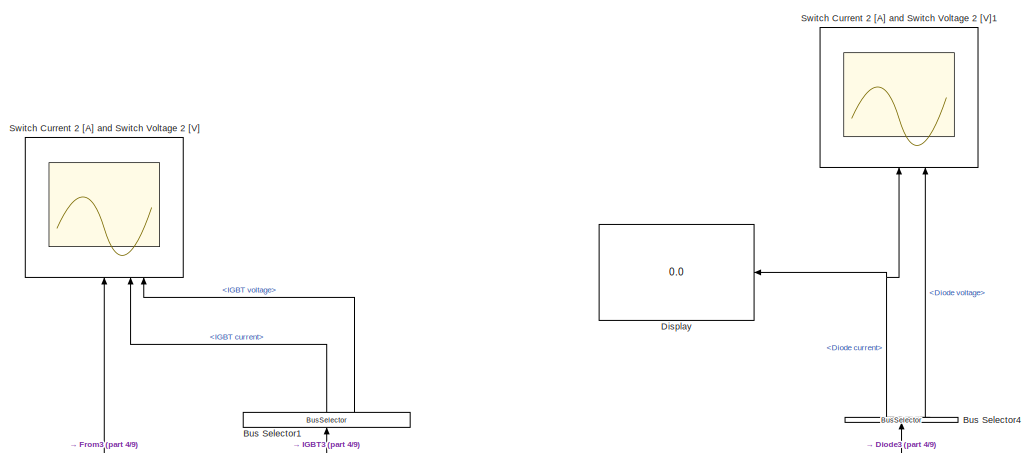
[diagram: root canvas - part 1/9, top right region]
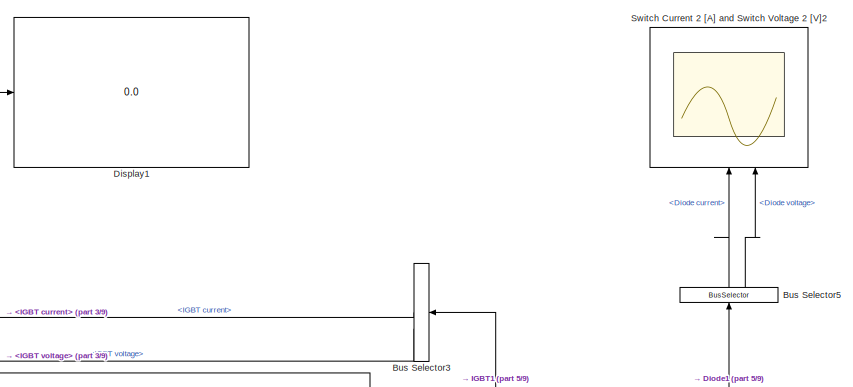
[diagram: root canvas - part 2/9, top center region]
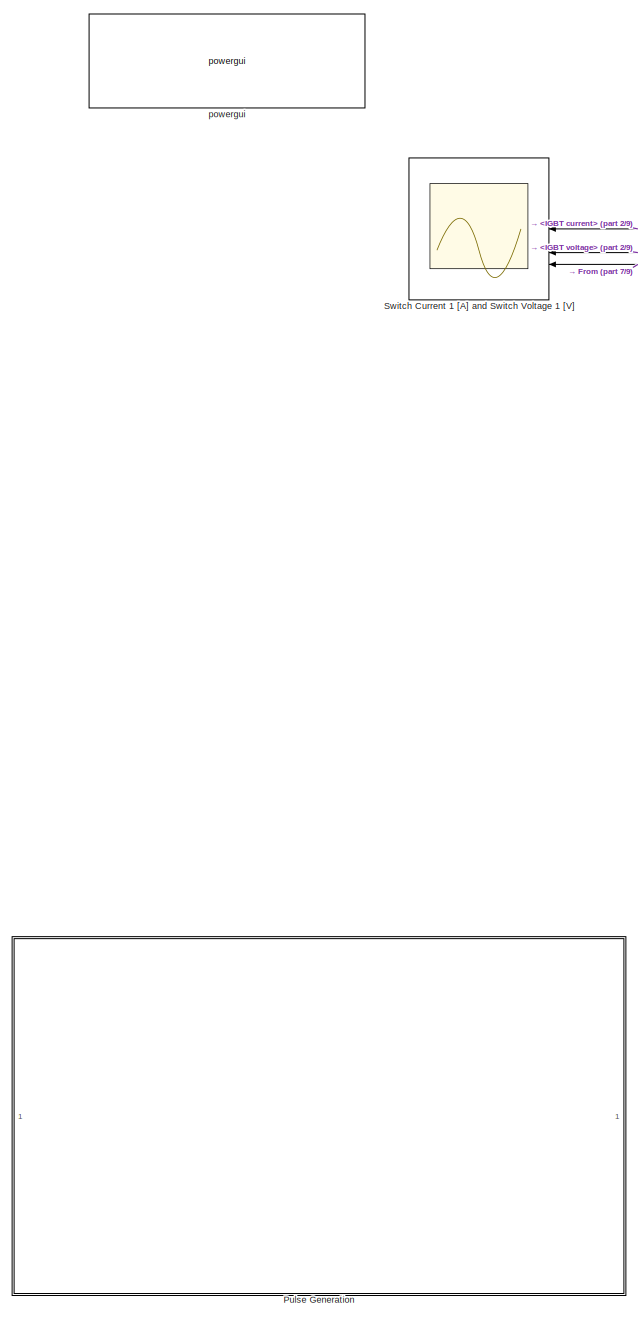
[diagram: root canvas - part 3/9, middle left region]
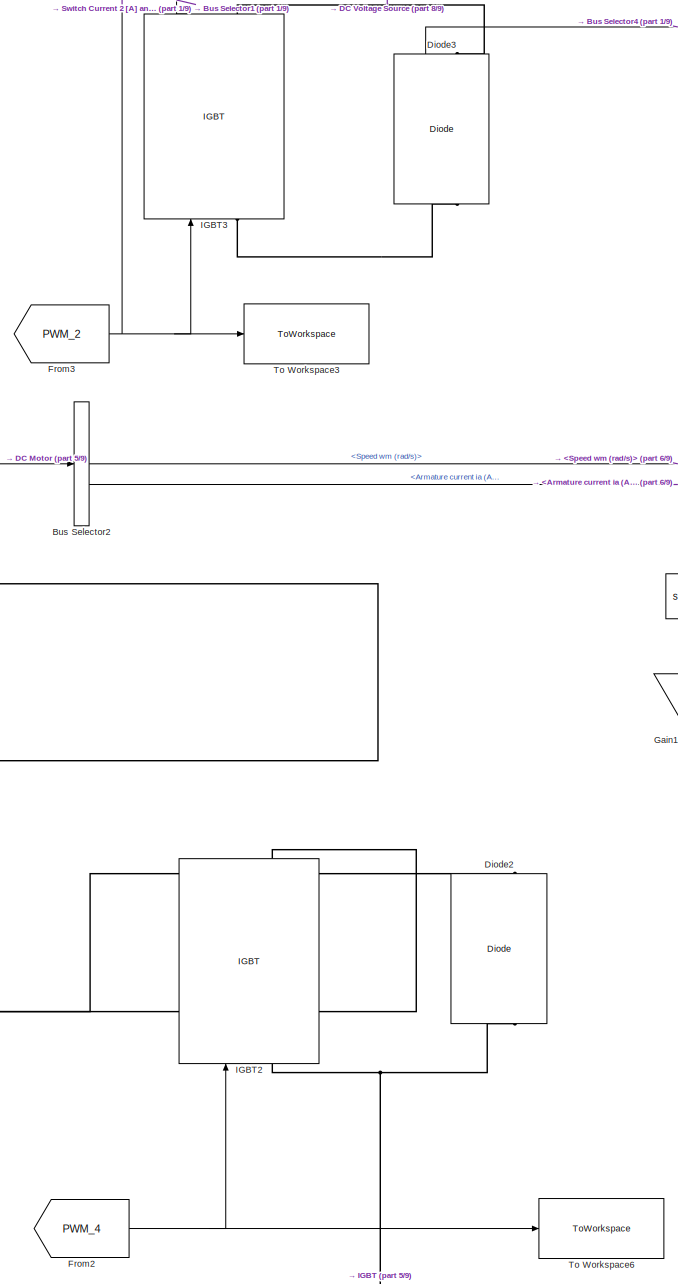
[diagram: root canvas - part 4/9, middle right region]
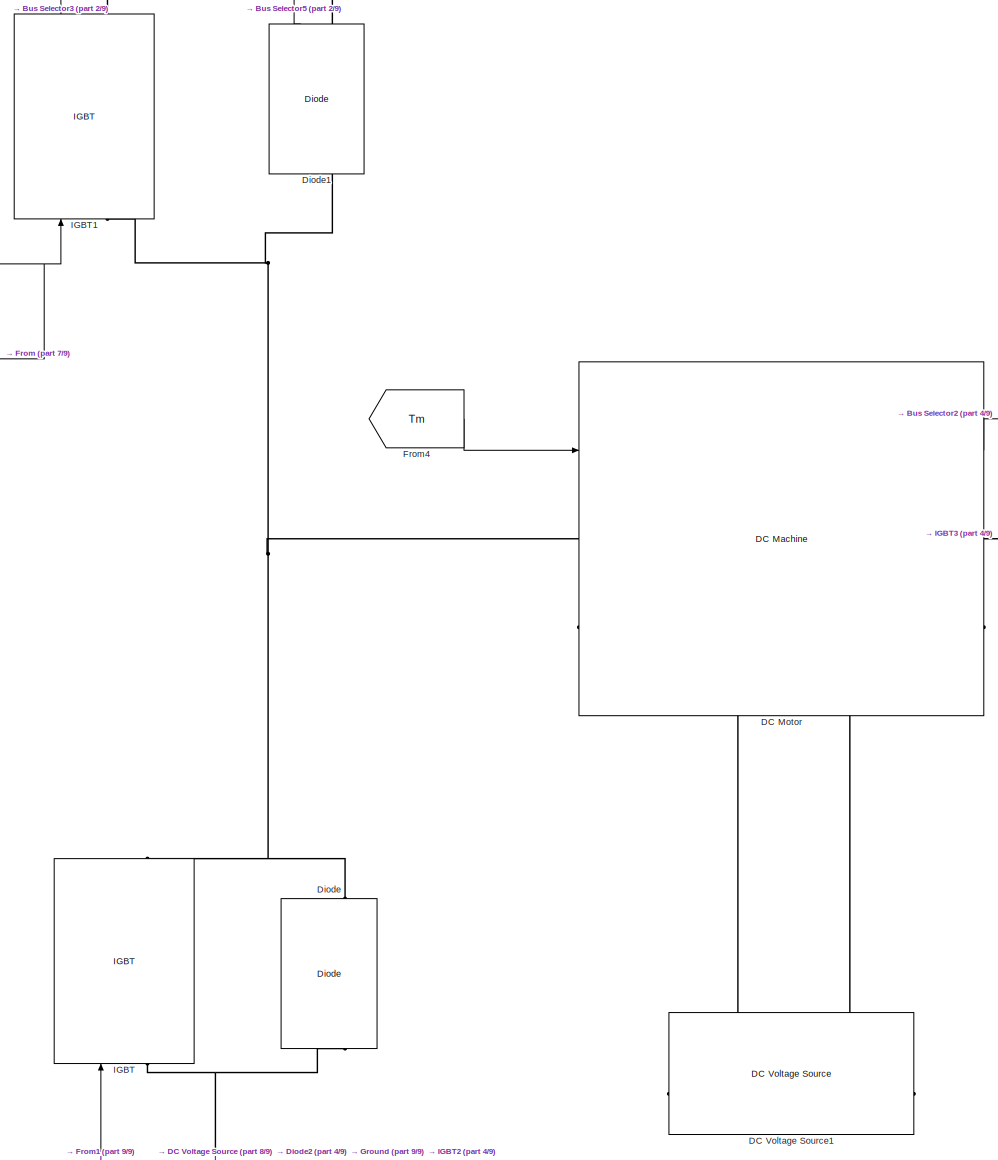
[diagram: root canvas - part 5/9, central region]
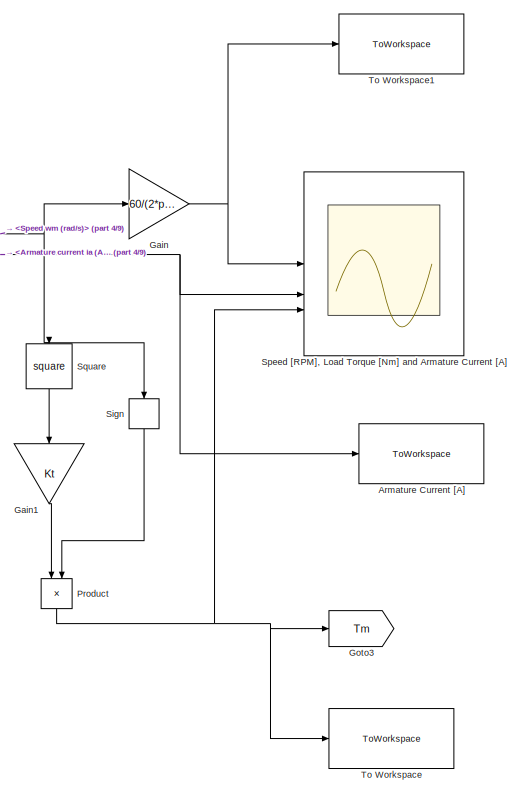
[diagram: root canvas - part 6/9, middle right region]
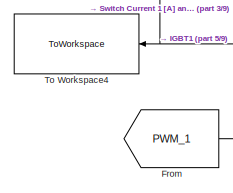
[diagram: root canvas - part 7/9, middle left region]
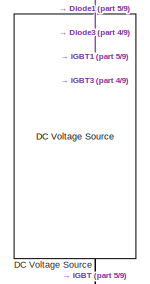
[diagram: root canvas - part 8/9, middle left region]
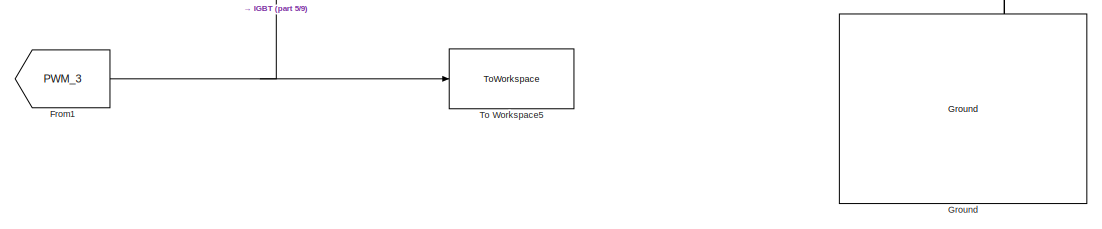
[diagram: root canvas - part 9/9, bottom center region]
MODEL slx_ec0bdc4184f7
KIND model
CONFIG AbsTol = auto
CONFIG EnableMultiTasking = off
CONFIG FixedStep = 6e-3
CONFIG MaxStep = auto
CONFIG MinStep = auto
CONFIG RelTol = 1e-3
CONFIG SampleTimeConstraint = Unconstrained
CONFIG SolverName = VariableStepAuto
CONFIG StartTime = 0.0
CONFIG StopTime = 1
BLOCK [ToWorkspace] Armature Current [A]
  FixptAsFi = on
  MaxDataPoints = inf
  SampleTime = -1
  VariableName = Ia
BLOCK [BusSelector] Bus Selector1
  NameLocation = right
  OutputSignals = IGBT current,IGBT voltage
BLOCK [BusSelector] Bus Selector2
  OutputSignals = Speed wm (rad/s),Armature current ia (A)
BLOCK [BusSelector] Bus Selector3
  NameLocation = top
  OutputSignals = IGBT current,IGBT voltage
BLOCK [BusSelector] Bus Selector4
  NameLocation = right
  OutputSignals = Diode current,Diode voltage
BLOCK [BusSelector] Bus Selector5
  NameLocation = right
  OutputSignals = Diode current,Diode voltage
BLOCK [Reference] DC Motor  REF=spsDCMachineLib/DC Machine
  LibrarySourceBlock = sps_lib/Electrical Machines/DC Machine
  SourceBlock = spsDCMachineLib/DC Machine
  SourceType = DC machine
BLOCK [Reference] DC Voltage Source  REF=spsDCVoltageSourceLib/DC Voltage Source
  LibrarySourceBlock = sps_lib/Sources/DC Voltage Source
  SourceBlock = spsDCVoltageSourceLib/DC Voltage Source
  SourceType = DC Voltage Source
BLOCK [Reference] DC Voltage Source1  REF=spsDCVoltageSourceLib/DC Voltage Source
  LibrarySourceBlock = sps_lib/Sources/DC Voltage Source
  NameLocation = right
  SourceBlock = spsDCVoltageSourceLib/DC Voltage Source
  SourceType = DC Voltage Source
BLOCK [Reference] Diode  REF=spsDiodeLib/Diode
  LibrarySourceBlock = sps_lib/Power Electronics/Diode
  NameLocation = right
  SourceBlock = spsDiodeLib/Diode
  SourceType = Diode
BLOCK [Reference] Diode1  REF=spsDiodeLib/Diode
  LibrarySourceBlock = sps_lib/Power Electronics/Diode
  NameLocation = right
  SourceBlock = spsDiodeLib/Diode
  SourceType = Diode
BLOCK [Reference] Diode2  REF=spsDiodeLib/Diode
  LibrarySourceBlock = sps_lib/Power Electronics/Diode
  NameLocation = right
  SourceBlock = spsDiodeLib/Diode
  SourceType = Diode
BLOCK [Reference] Diode3  REF=spsDiodeLib/Diode
  LibrarySourceBlock = sps_lib/Power Electronics/Diode
  NameLocation = right
  SourceBlock = spsDiodeLib/Diode
  SourceType = Diode
BLOCK [Display] Display
  Decimation = 1
  NameLocation = top
BLOCK [Display] Display1
  Decimation = 1
BLOCK [From] From
  GotoTag = PWM_1
  TagVisibility = global
BLOCK [From] From1
  GotoTag = PWM_3
  TagVisibility = global
BLOCK [From] From2
  GotoTag = PWM_4
  TagVisibility = global
BLOCK [From] From3
  GotoTag = PWM_2
  TagVisibility = global
BLOCK [From] From4
  GotoTag = Tm
BLOCK [Gain] Gain
  Gain = 60/(2*pi)
BLOCK [Gain] Gain1
  Gain = Kt
  NameLocation = left
BLOCK [Goto] Goto3
  GotoTag = Tm
BLOCK [Reference] Ground  REF=spsGroundLib/Ground
  LibrarySourceBlock = sps_lib/Utilities/Ground
  NameLocation = right
  SourceBlock = spsGroundLib/Ground
  SourceType = Ground
BLOCK [Reference] IGBT  REF=spsIGBTLib/IGBT
  LibrarySourceBlock = sps_lib/Power Electronics/IGBT
  NameLocation = right
  SourceBlock = spsIGBTLib/IGBT
  SourceType = IGBT
BLOCK [Reference] IGBT1  REF=spsIGBTLib/IGBT
  LibrarySourceBlock = sps_lib/Power Electronics/IGBT
  NameLocation = right
  SourceBlock = spsIGBTLib/IGBT
  SourceType = IGBT
BLOCK [Reference] IGBT2  REF=spsIGBTLib/IGBT
  LibrarySourceBlock = sps_lib/Power Electronics/IGBT
  NameLocation = right
  SourceBlock = spsIGBTLib/IGBT
  SourceType = IGBT
BLOCK [Reference] IGBT3  REF=spsIGBTLib/IGBT
  LibrarySourceBlock = sps_lib/Power Electronics/IGBT
  NameLocation = right
  SourceBlock = spsIGBTLib/IGBT
  SourceType = IGBT
BLOCK [Product] Product
  NameLocation = left
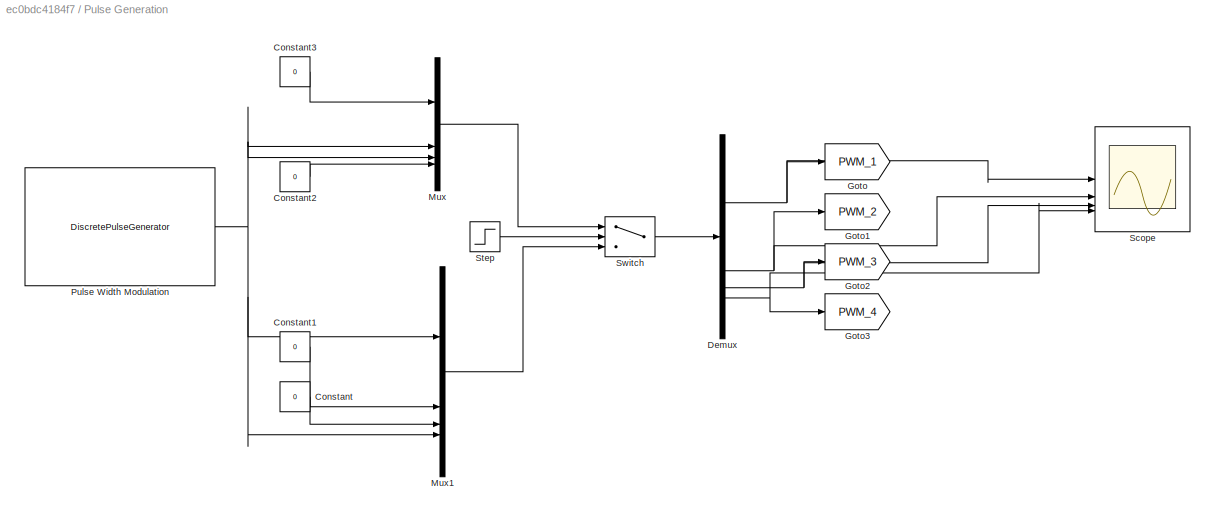
BLOCK [SubSystem] Pulse Generation
BLOCK [Constant] Pulse Generation/Constant
  Value = 0
BLOCK [Constant] Pulse Generation/Constant1
  Value = 0
BLOCK [Constant] Pulse Generation/Constant2
  Value = 0
BLOCK [Constant] Pulse Generation/Constant3
  Value = 0
BLOCK [Demux] Pulse Generation/Demux
BLOCK [Goto] Pulse Generation/Goto
  GotoTag = PWM_1
  TagVisibility = global
BLOCK [Goto] Pulse Generation/Goto1
  GotoTag = PWM_2
  TagVisibility = global
BLOCK [Goto] Pulse Generation/Goto2
  GotoTag = PWM_3
  TagVisibility = global
BLOCK [Goto] Pulse Generation/Goto3
  GotoTag = PWM_4
  TagVisibility = global
BLOCK [Mux] Pulse Generation/Mux
  DisplayOption = bar
BLOCK [Mux] Pulse Generation/Mux1
  DisplayOption = bar
BLOCK [DiscretePulseGenerator] Pulse Generation/Pulse Width Modulation
  Period = T
  PulseType = Time based
  PulseWidth = K_on
BLOCK [Scope] Pulse Generation/Scope
  Floating = off
  NumInputPorts = 4
  ScopeSpecificationString = Simulink.scopes.TimeScopeBlockCfg('CurrentConfiguration', extmgr.ConfigurationSet(extmgr.Configuration('Core','General UI',true),extmgr.Configuration('Core','Source UI',true),extmgr.Configuration('Sources','WiredSimulink',true,'DataLoggingVariableName','ScopeData2'),extmgr.Configuration('Visuals','Time Domain',true,'SerializedDisplays',{struct('MinYLimReal','-0.125','MaxYLimReal','1.125','YLabelRe...<+3456ch>
BLOCK [Step] Pulse Generation/Step
  SampleTime = 0
  Time = 0.5
BLOCK [Switch] Pulse Generation/Switch
  Criteria = u2 > Threshold
  InputSameDT = off
  SaturateOnIntegerOverflow = off
  Threshold = 0.5
BLOCK [Signum] Sign
  NameLocation = left
BLOCK [Scope] Speed [RPM], Load Torque [Nm] and Armature Current [A]
  Floating = off
  NumInputPorts = 3
  ScopeSpecificationString = Simulink.scopes.TimeScopeBlockCfg('CurrentConfiguration', extmgr.ConfigurationSet(extmgr.Configuration('Core','General UI',true),extmgr.Configuration('Core','Source UI',true),extmgr.Configuration('Sources','WiredSimulink',true,'DataLoggingVariableName','ScopeData1'),extmgr.Configuration('Visuals','Time Domain',true,'TimeAxisLabels','All','SerializedDisplays',{struct('MinYLimReal','2.10808','MaxYLi...<+2917ch>
BLOCK [Math] Square
  NameLocation = left
  Operator = square
BLOCK [Scope] Switch Current 1 [A] and Switch Voltage 1 [V]
  Floating = off
  NameLocation = top
  NumInputPorts = 3
  ScopeSpecificationString = Simulink.scopes.TimeScopeBlockCfg('CurrentConfiguration', extmgr.ConfigurationSet(extmgr.Configuration('Core','General UI',true),extmgr.Configuration('Core','Source UI',true),extmgr.Configuration('Sources','WiredSimulink',true,'DataLoggingVariableName','ScopeData3'),extmgr.Configuration('Visuals','Time Domain',true,'TimeAxisLabels','All','SerializedDisplays',{struct('MinYLimReal','-1.00000','MaxYL...<+2851ch>
BLOCK [Scope] Switch Current 2 [A] and Switch Voltage 2 [V]
  Floating = off
  NameLocation = right
  NumInputPorts = 3
  ScopeSpecificationString = Simulink.scopes.TimeScopeBlockCfg('CurrentConfiguration', extmgr.ConfigurationSet(extmgr.Configuration('Core','General UI',true),extmgr.Configuration('Core','Source UI',true),extmgr.Configuration('Sources','WiredSimulink',true,'DataLoggingVariableName','ScopeData1'),extmgr.Configuration('Visuals','Time Domain',true,'TimeAxisLabels','All','SerializedDisplays',{struct('MinYLimReal','-0.125','MaxYLim...<+2852ch>
BLOCK [Scope] Switch Current 2 [A] and Switch Voltage 2 [V]1
  Floating = off
  NameLocation = right
  NumInputPorts = 2
  ScopeSpecificationString = Simulink.scopes.TimeScopeBlockCfg('CurrentConfiguration', extmgr.ConfigurationSet(extmgr.Configuration('Core','General UI',true),extmgr.Configuration('Core','Source UI',true),extmgr.Configuration('Sources','WiredSimulink',true,'DataLoggingVariableName','ScopeData1'),extmgr.Configuration('Visuals','Time Domain',true,'TimeAxisLabels','All','SerializedDisplays',{struct('MinYLimReal','-1.00000','MaxYL...<+2130ch>
BLOCK [Scope] Switch Current 2 [A] and Switch Voltage 2 [V]2
  Floating = off
  NameLocation = right
  NumInputPorts = 2
  ScopeSpecificationString = Simulink.scopes.TimeScopeBlockCfg('CurrentConfiguration', extmgr.ConfigurationSet(extmgr.Configuration('Core','General UI',true),extmgr.Configuration('Core','Source UI',true),extmgr.Configuration('Sources','WiredSimulink',true,'DataLoggingVariableName','ScopeData2'),extmgr.Configuration('Visuals','Time Domain',true,'TimeAxisLabels','All','SerializedDisplays',{struct('MinYLimReal','-1.00000','MaxYL...<+2130ch>
BLOCK [ToWorkspace] To Workspace
  FixptAsFi = on
  MaxDataPoints = inf
  SampleTime = -1
  VariableName = Tl
BLOCK [ToWorkspace] To Workspace1
  FixptAsFi = on
  MaxDataPoints = inf
  SampleTime = -1
  VariableName = RPM
BLOCK [ToWorkspace] To Workspace3
  FixptAsFi = on
  MaxDataPoints = inf
  SampleTime = -1
  VariableName = S2
BLOCK [ToWorkspace] To Workspace4
  FixptAsFi = on
  MaxDataPoints = inf
  NameLocation = top
  SampleTime = -1
  VariableName = S1
BLOCK [ToWorkspace] To Workspace5
  FixptAsFi = on
  MaxDataPoints = inf
  SampleTime = -1
  VariableName = S3
BLOCK [ToWorkspace] To Workspace6
  FixptAsFi = on
  MaxDataPoints = inf
  SampleTime = -1
  VariableName = S4
BLOCK [Reference] powergui  REF=sps_lib/powergui
  Priority = 1
  SourceBlock = sps_lib/powergui
  SourceType = PSB option menu block
LINE Bus Selector1:1 -> Switch Current 2 [A] and Switch Voltage 2 [V]:2
LINE Bus Selector1:2 -> Switch Current 2 [A] and Switch Voltage 2 [V]:3
NET Bus Selector2:1 -> Gain:1, Sign:1, Square:1
NET Bus Selector2:2 -> Armature Current [A]:1, Speed [RPM], Load Torque [Nm] and Armature Current [A]:2
NET Bus Selector3:1 -> Display1:1, Switch Current 1 [A] and Switch Voltage 1 [V]:1
LINE Bus Selector3:2 -> Switch Current 1 [A] and Switch Voltage 1 [V]:2
NET Bus Selector4:1 -> Display:1, Switch Current 2 [A] and Switch Voltage 2 [V]1:1
LINE Bus Selector4:2 -> Switch Current 2 [A] and Switch Voltage 2 [V]1:2
LINE Bus Selector5:1 -> Switch Current 2 [A] and Switch Voltage 2 [V]2:1
LINE Bus Selector5:2 -> Switch Current 2 [A] and Switch Voltage 2 [V]2:2
LINE DC Motor:1 -> Bus Selector2:1
LINE Diode1:1 -> Bus Selector5:1
LINE Diode3:1 -> Bus Selector4:1
NET From1:1 -> IGBT:1, To Workspace5:1
NET From2:1 -> IGBT2:1, To Workspace6:1
NET From3:1 -> IGBT3:1, Switch Current 2 [A] and Switch Voltage 2 [V]:1, To Workspace3:1
LINE From4:1 -> DC Motor:1
NET From:1 -> IGBT1:1, Switch Current 1 [A] and Switch Voltage 1 [V]:3, To Workspace4:1
LINE Gain1:1 -> Product:1
NET Gain:1 -> Speed [RPM], Load Torque [Nm] and Armature Current [A]:1, To Workspace1:1
LINE IGBT1:1 -> Bus Selector3:1
LINE IGBT3:1 -> Bus Selector1:1
NET Product:1 -> Goto3:1, Speed [RPM], Load Torque [Nm] and Armature Current [A]:3, To Workspace:1
LINE Pulse Generation/Constant1:1 -> Pulse Generation/Mux1:2
LINE Pulse Generation/Constant2:1 -> Pulse Generation/Mux:4
LINE Pulse Generation/Constant3:1 -> Pulse Generation/Mux:1
LINE Pulse Generation/Constant:1 -> Pulse Generation/Mux1:3
NET Pulse Generation/Demux:1 -> Pulse Generation/Goto:1, Pulse Generation/Scope:1
NET Pulse Generation/Demux:2 -> Pulse Generation/Goto1:1, Pulse Generation/Scope:2
NET Pulse Generation/Demux:3 -> Pulse Generation/Goto2:1, Pulse Generation/Scope:3
NET Pulse Generation/Demux:4 -> Pulse Generation/Goto3:1, Pulse Generation/Scope:4
LINE Pulse Generation/Mux1:1 -> Pulse Generation/Switch:3
LINE Pulse Generation/Mux:1 -> Pulse Generation/Switch:1
NET Pulse Generation/Pulse Width Modulation:1 -> Pulse Generation/Mux1:1, Pulse Generation/Mux1:4, Pulse Generation/Mux:2, Pulse Generation/Mux:3
LINE Pulse Generation/Step:1 -> Pulse Generation/Switch:2
LINE Pulse Generation/Switch:1 -> Pulse Generation/Demux:1
LINE Sign:1 -> Product:2
LINE Square:1 -> Gain1:1
PNET net1: DC Motor:LConn1 -- Diode1:LConn1 -- Diode:RConn1 -- IGBT1:LConn1 -- IGBT:RConn1
PLINE DC Motor:LConn2 -- DC Voltage Source1:RConn1
PNET net2: DC Motor:RConn1 -- Diode2:RConn1 -- Diode3:LConn1 -- IGBT2:RConn1 -- IGBT3:LConn1
PLINE DC Motor:RConn2 -- DC Voltage Source1:LConn1
PNET net3: DC Voltage Source:LConn1 -- Diode2:LConn1 -- Diode:LConn1 -- Ground:LConn1 -- IGBT2:LConn1 -- IGBT:LConn1
PNET net4: DC Voltage Source:RConn1 -- Diode1:RConn1 -- Diode3:RConn1 -- IGBT1:RConn1 -- IGBT3:RConn1
note: NET lines group one-source signal fan-out (src -> all destinations, sorted); 1:1 wires keep LINE; PNET lines group multi-terminal physical nets as a canonical sorted terminal list (undirected conserving connections); 2-terminal nets keep the pairwise PLINE form
